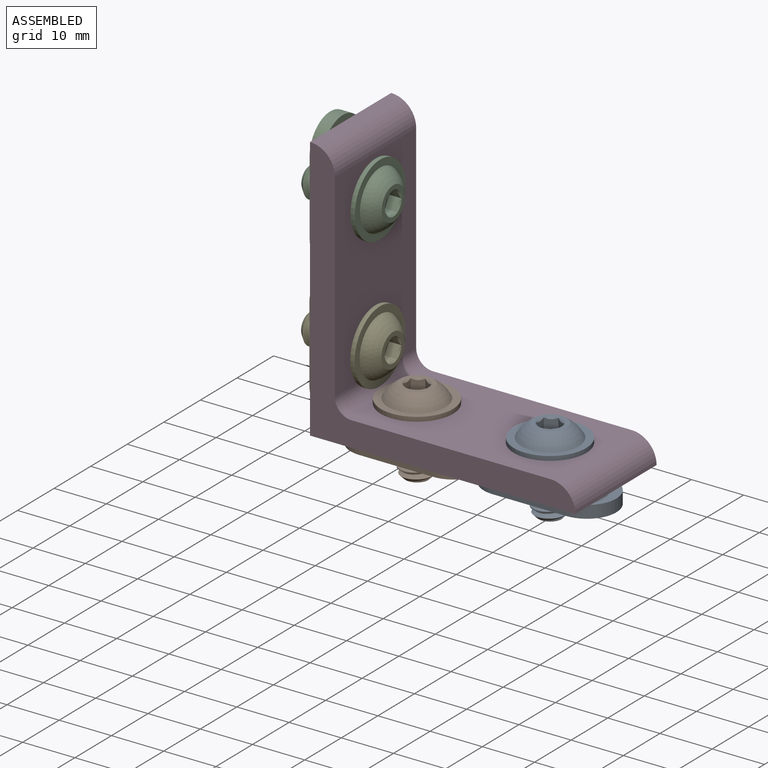
[diagram: assembled view]
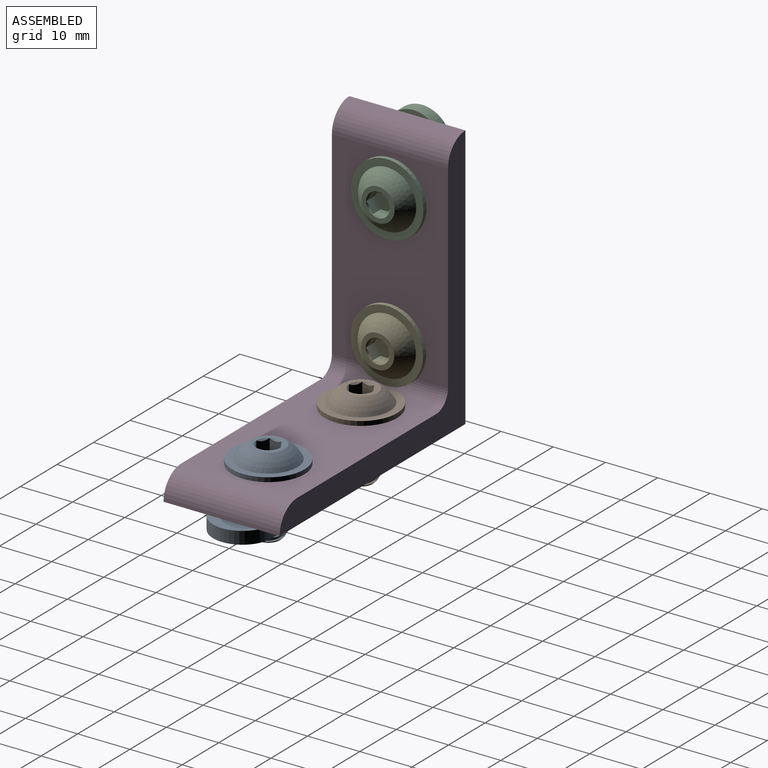
[diagram: assembled view, second angle]
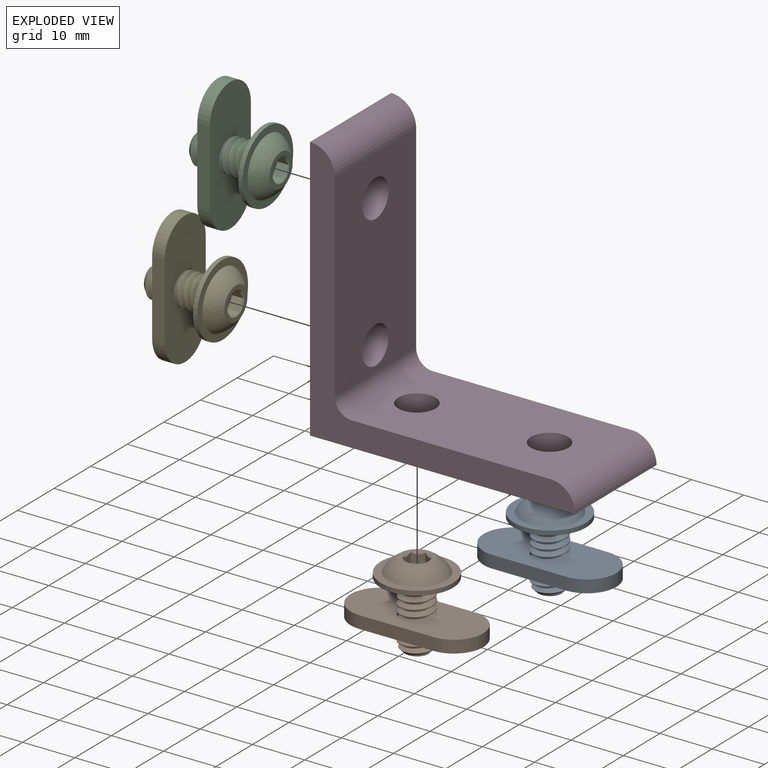
[diagram: exploded view]
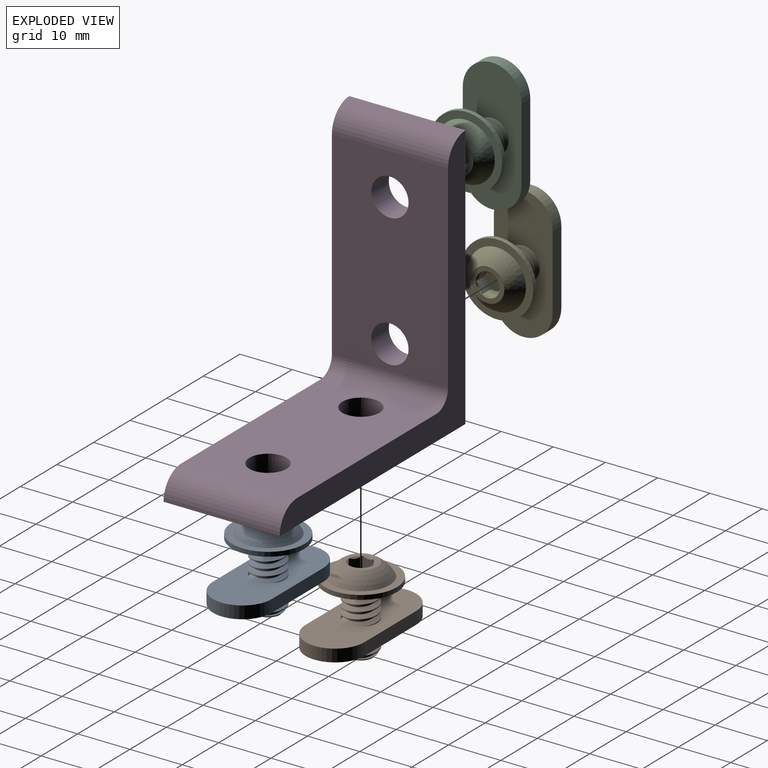
[diagram: exploded view, second angle]
ASSEMBLY  parts=5 mates=4
PART A: 34 faces, bbox 26.3x14.7x17 mm
  f0: cylinder r=3.17mm len=6.35mm, axis (0,0,1), area 15.5mm2, adj f2,f4,f7,f31
  f1: cylinder r=3.17mm len=6.35mm, axis (0,0,1), area 5.6mm2, adj f2,f4,f5,f32
  f2: bspline ~13.37x6.49mm, area 142.3mm2, adj f0,f1,f3,f5,f7,f25
  f3: cylinder r=2.35mm len=12.56mm, axis (0,0,1), area 13.7mm2, adj f2,f4,f5,f7
  f4: bspline ~13.22x6.49mm, area 158.7mm2, adj f0,f1,f3,f5,f7,f25
  f5: cone r=2.21mm half-angle=45deg, axis (0,0,1), area 12.5mm2, adj f1,f2,f3,f4,f6
  f6: plane 4.43x4.43mm, normal (0,0,-1), area 15.4mm2, adj f5
  f7: plane 14.36x14.36mm, normal (0,0,-1), area 126.8mm2, adj f0,f2,f3,f4,f11
  f8: plane 6.35x6.35mm, normal (0,0,1), area 15.2mm2, adj f9,f12,f13,f14,f15,f16,f17
  f9: sphere r=6.24mm, area 98.7mm2, adj f8,f10
  f10: plane 13.87x13.87mm, normal (0,0,1), area 54.3mm2, adj f9,f11
  f11: cylinder r=6.93mm len=13.87mm, axis (0,0,-1), area 36.5mm2, adj f7,f10
  f12: cone r=2.29mm half-angle=45deg, axis (0,0,1), area 0mm2, adj f8,f19
  f13: cone r=2.29mm half-angle=45deg, axis (0,0,1), area 0mm2, adj f8,f20
  f14: cone r=2.29mm half-angle=45deg, axis (0,0,1), area 0mm2, adj f8,f21
  f15: cone r=2.29mm half-angle=45deg, axis (0,0,1), area 0mm2, adj f8,f22
  f16: cone r=2.29mm half-angle=45deg, axis (0,0,1), area 0mm2, adj f8,f23
  f17: cone r=2.29mm half-angle=45deg, axis (0,0,1), area 0mm2, adj f8,f24
  f18: plane 4.58x3.97mm, normal (0,0,1), area 13.6mm2, adj f19,f20,f21,f22,f23,f24
  f19: plane 3.25x2.85mm, normal (0.5,-0.87,0), area 5mm2, adj f12,f18,f20,f24
  f20: plane 3.25x3.16mm, normal (1,0,0), area 5mm2, adj f13,f18,f19,f21
  f21: plane 3.25x2.85mm, normal (0.5,0.87,0), area 5mm2, adj f14,f18,f20,f22
  f22: plane 3.25x2.85mm, normal (-0.5,0.87,0), area 5mm2, adj f15,f18,f21,f23
  f23: plane 3.25x3.16mm, normal (-1,0,0), area 5mm2, adj f16,f18,f22,f24
  f24: plane 3.25x2.85mm, normal (-0.5,-0.87,0), area 5mm2, adj f17,f18,f19,f23
  f25: cylinder r=3.17mm len=6.35mm, axis (0,0,1), area 55mm2, adj f2,f4,f31,f32
  f26: plane 25.4x11.25mm, normal (0,0,-1), area 218.6mm2, adj f27,f28,f29,f30,f33
  f27: cylinder r=5.63mm len=11.25mm, axis (0,0,1), area 42.2mm2, adj f26,f28,f30,f31
  f28: plane 14.15x2.39mm, normal (0,1,0), area 33.8mm2, adj f26,f27,f29,f31
  f29: cylinder r=5.63mm len=11.25mm, axis (0,0,1), area 42.2mm2, adj f26,f28,f30,f31
  f30: plane 14.15x2.39mm, normal (0,-1,0), area 33.8mm2, adj f26,f27,f29,f31
  f31: plane 25.4x11.25mm, normal (0,0,1), area 227mm2, adj f0,f25,f27,f28,f29,f30
  f32: plane 7.14x7.14mm, normal (0,0,-1), area 8.3mm2, adj f1,f25,f33
  f33: cylinder r=3.57mm len=7.14mm, axis (0,0,1), area 17.1mm2, adj f26,f32
PART B: same geometry as A
PART C: same geometry as A
PART D: 13 faces, bbox 50.8x22.2x50.8 mm
  f0: plane 38.07x22.23mm, normal (1,0,0), area 766.2mm2, adj f5,f6,f7,f8,f11,f12
  f1: plane 50.8x22.23mm, normal (-1,0,0), area 1049mm2, adj f2,f6,f7,f8,f11,f12
  f2: plane 50.8x22.23mm, normal (0,0,-1), area 1049mm2, adj f1,f4,f7,f8,f9,f10
  f3: plane 38.07x22.23mm, normal (0,0,1), area 766.2mm2, adj f4,f5,f7,f8,f9,f10
  f4: cylinder r=4.78mm len=22.23mm, axis (0,1,0), area 166.7mm2, adj f2,f3,f7,f8
  f5: cylinder r=3.17mm len=22.23mm, axis (0,1,0), area 110.8mm2, adj f0,f3,f7,f8
  f6: cylinder r=4.78mm len=22.23mm, axis (0,1,0), area 166.7mm2, adj f0,f1,f7,f8
  f7: plane 50.8x50.8mm, normal (0,-1,0), area 454.7mm2, adj f0,f1,f2,f3,f4,f5,f6
  f8: plane 50.8x50.8mm, normal (0,1,0), area 454.7mm2, adj f0,f1,f2,f3,f4,f5,f6
  f9: cylinder r=3.57mm len=7.14mm, axis (0,0,-1), area 107.1mm2, adj f2,f3
  f10: cylinder r=3.57mm len=7.14mm, axis (0,0,-1), area 107.1mm2, adj f2,f3
  f11: cylinder r=3.57mm len=7.14mm, axis (-1,0,0), area 107.1mm2, adj f0,f1
  f12: cylinder r=3.57mm len=7.14mm, axis (-1,0,0), area 107.1mm2, adj f0,f1
PART E: same geometry as A
PLACE A t=(38.13,11.18,4.78)mm
PLACE B t=(12.7,11.11,4.78)mm
PLACE C rot(axis=(0,1,0),90deg) t=(4.78,11.18,38.07)mm
PLACE D t=(0,11.11,0)mm fixed
PLACE E rot(axis=(0,1,0),90deg) t=(4.78,11.11,12.7)mm
MATE fastened B.f0 <-> D.f9  axis (0,0,-1) through (12.7,11.11,4.78)mm
MATE fastened C.f7 <-> D.f12  axis (-1,0,0) through (4.78,11.11,38.1)mm
MATE fastened A.f7 <-> D.f10  axis (0,0,-1) through (38.1,11.11,4.78)mm
MATE fastened E.f0 <-> D.f11  axis (-1,0,0) through (4.78,11.11,12.7)mm
